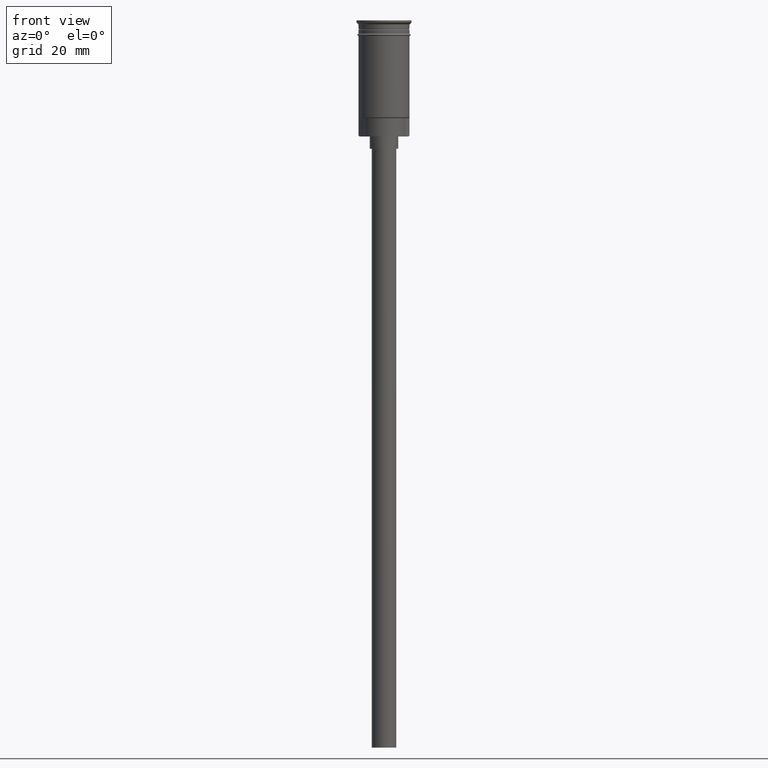
[diagram: clean part render]
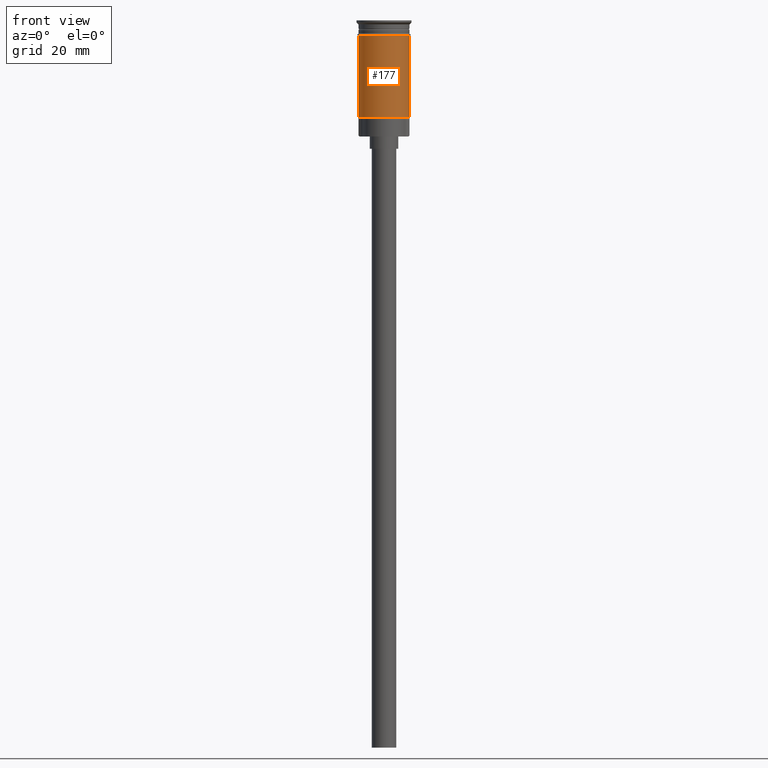
[diagram: same view with one face highlighted and labeled with its STEP entity id]
A machine part, front view. The second image highlights one B-rep face of the part: STEP entity #177.
In plain terms, the highlighted cylindrical surface (edge-blend (fillet) strip) has radius 6.25 mm, axis along (-0, -0, 1).
Its self-contained STEP definition (entity closure, byte-faithful):
#9 = CARTESIAN_POINT ( 'NONE',  ( 6.249999999999997335, 7.654042494670953662E-16, -23.80000000000000782 ) ) ;
#53 = VERTEX_POINT ( 'NONE', #769 ) ;
#88 = CARTESIAN_POINT ( 'NONE',  ( 6.250000000000000000, 0.000000000000000000, -3.799999999999998490 ) ) ;
#135 = EDGE_CURVE ( 'NONE', #53, #153, #160, .T. ) ;
#153 = VERTEX_POINT ( 'NONE', #88 ) ;
#160 = CIRCLE ( 'NONE', #1141, 6.250000000000000000 ) ;
#177 = ADVANCED_FACE ( 'NONE', ( #826 ), #711, .T. ) ;
#193 = DIRECTION ( 'NONE',  ( -0.000000000000000000, -0.000000000000000000, 1.000000000000000000 ) ) ;
#195 = EDGE_CURVE ( 'NONE', #1572, #1277, #335, .T. ) ;
#213 = DIRECTION ( 'NONE',  ( -1.000000000000000000, 0.000000000000000000, 0.000000000000000000 ) ) ;
#318 = CARTESIAN_POINT ( 'NONE',  ( 0.000000000000000000, 0.000000000000000000, -3.799999999999998490 ) ) ;
#332 = CARTESIAN_POINT ( 'NONE',  ( 0.000000000000000000, 0.000000000000000000, 0.000000000000000000 ) ) ;
#335 = CIRCLE ( 'NONE', #1237, 6.249999999999997335 ) ;
#337 = LINE ( 'NONE', #354, #542 ) ;
#340 = VECTOR ( 'NONE', #883, 1000.000000000000000 ) ;
#354 = CARTESIAN_POINT ( 'NONE',  ( -6.249999999999997335, 7.654042494670954648E-16, 0.000000000000000000 ) ) ;
#441 = CARTESIAN_POINT ( 'NONE',  ( 0.000000000000000000, 0.000000000000000000, -23.80000000000000782 ) ) ;
#456 = DIRECTION ( 'NONE',  ( -0.000000000000000000, -0.000000000000000000, 1.000000000000000000 ) ) ;
#542 = VECTOR ( 'NONE', #838, 1000.000000000000000 ) ;
#563 = DIRECTION ( 'NONE',  ( -0.000000000000000000, -0.000000000000000000, 1.000000000000000000 ) ) ;
#614 = CARTESIAN_POINT ( 'NONE',  ( -6.249999999999995559, 0.000000000000000000, -23.80000000000000782 ) ) ;
#711 = CYLINDRICAL_SURFACE ( 'NONE', #1035, 6.249999999999997335 ) ;
#758 = ORIENTED_EDGE ( 'NONE', *, *, #195, .T. ) ;
#769 = CARTESIAN_POINT ( 'NONE',  ( -6.250000000000000000, 7.654042494670958593E-16, -3.799999999999998490 ) ) ;
#826 = FACE_OUTER_BOUND ( 'NONE', #1077, .T. ) ;
#838 = DIRECTION ( 'NONE',  ( -0.000000000000000000, -0.000000000000000000, 1.000000000000000000 ) ) ;
#862 = ORIENTED_EDGE ( 'NONE', *, *, #1155, .F. ) ;
#883 = DIRECTION ( 'NONE',  ( -0.000000000000000000, -0.000000000000000000, 1.000000000000000000 ) ) ;
#891 = CARTESIAN_POINT ( 'NONE',  ( 6.249999999999997335, 0.000000000000000000, 0.000000000000000000 ) ) ;
#928 = DIRECTION ( 'NONE',  ( 1.000000000000000000, 0.000000000000000000, 0.000000000000000000 ) ) ;
#1014 = ORIENTED_EDGE ( 'NONE', *, *, #1327, .T. ) ;
#1035 = AXIS2_PLACEMENT_3D ( 'NONE', #332, #193, #1321 ) ;
#1077 = EDGE_LOOP ( 'NONE', ( #862, #758, #1014, #1471 ) ) ;
#1141 = AXIS2_PLACEMENT_3D ( 'NONE', #318, #563, #928 ) ;
#1155 = EDGE_CURVE ( 'NONE', #1572, #53, #337, .T. ) ;
#1237 = AXIS2_PLACEMENT_3D ( 'NONE', #441, #456, #213 ) ;
#1277 = VERTEX_POINT ( 'NONE', #9 ) ;
#1321 = DIRECTION ( 'NONE',  ( 1.000000000000000000, 0.000000000000000000, 0.000000000000000000 ) ) ;
#1327 = EDGE_CURVE ( 'NONE', #1277, #153, #1390, .T. ) ;
#1390 = LINE ( 'NONE', #891, #340 ) ;
#1471 = ORIENTED_EDGE ( 'NONE', *, *, #135, .F. ) ;
#1572 = VERTEX_POINT ( 'NONE', #614 ) ;